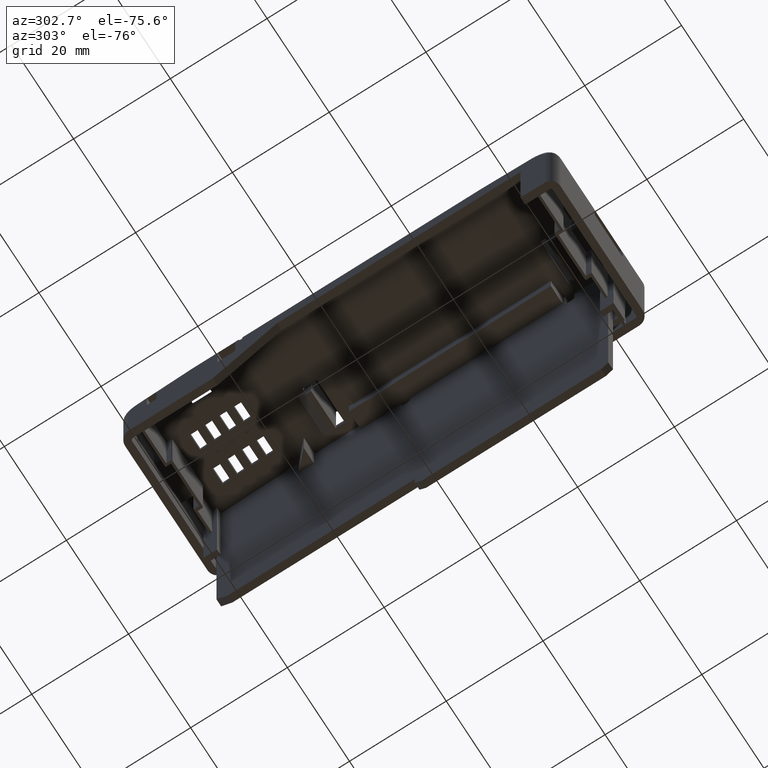
[diagram: clean part render]
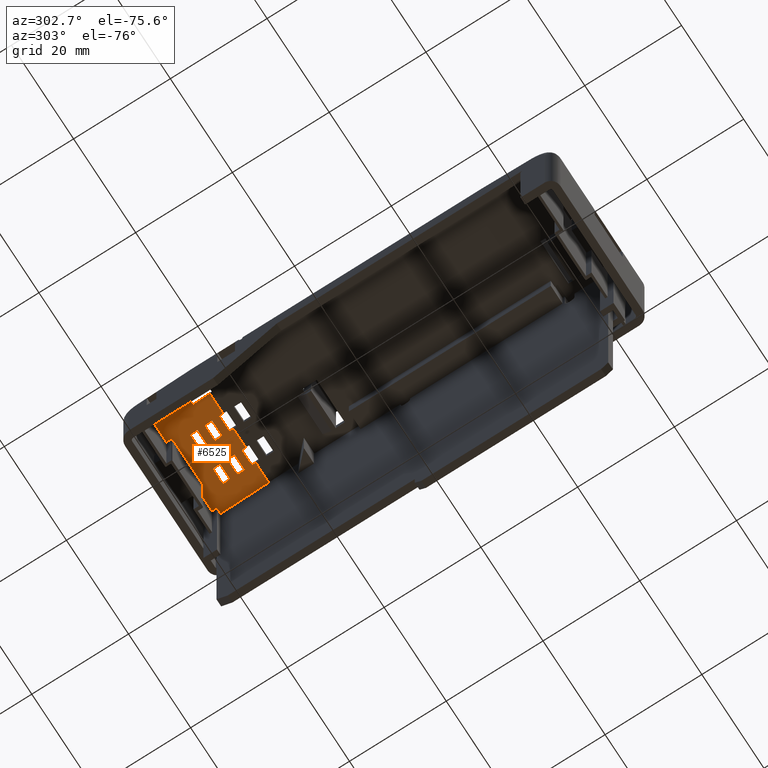
[diagram: same view with one face highlighted and labeled with its STEP entity id]
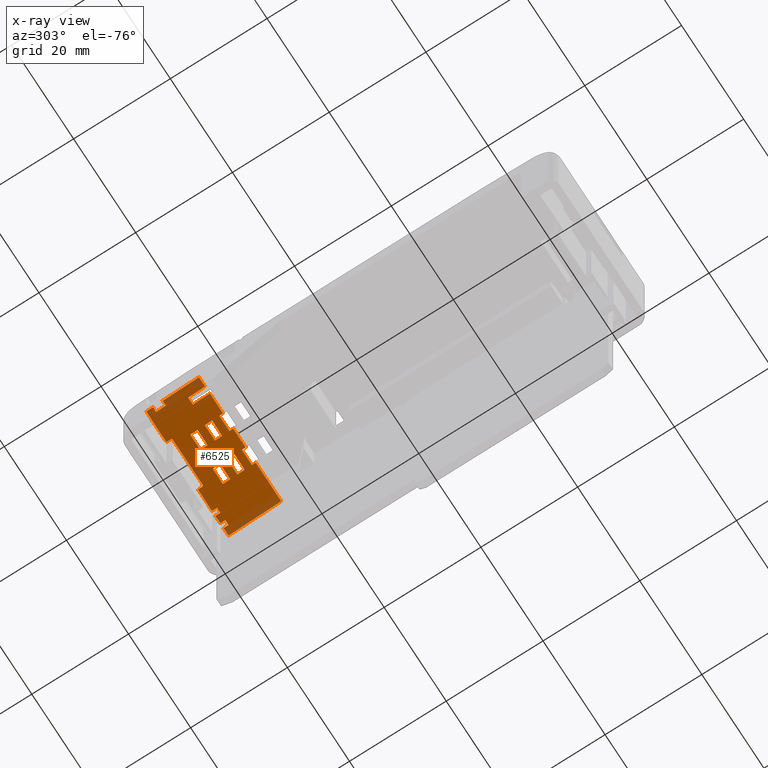
[diagram: x-ray of the same camera — body ghosted, the highlighted face saturated]
A machine part, auxiliary view. The second image highlights one B-rep face of the part: STEP entity #6525.
The next image is the same camera in x-ray: the body ghosted, the highlighted face saturated — about 15% of this face is hidden behind the body in this view.
In plain terms, the highlighted planar face has unit normal (0, 0.0996, 0.995).
Its self-contained STEP definition (entity closure, byte-faithful):
#3678 = DIRECTION ( 'NONE',  ( 0.0000000000000000000, -0.9950302254939813500, 0.09957334157994532400 ) ) ;
#3679 = VECTOR ( 'NONE', #3678, 1000.000000000000100 ) ;
#3680 = CARTESIAN_POINT ( 'NONE',  ( 2.499999999999998700, 34.12035754261964400, 3.621180203398221700 ) ) ;
#3681 = LINE ( 'NONE', #3680, #3679 ) ;
#5353 = CARTESIAN_POINT ( 'NONE',  ( 4.500000000000000900, 37.72447470938786300, 3.260513782875572800 ) ) ;
#5499 = DIRECTION ( 'NONE',  ( -2.157627864338630100E-016, -0.9950302254939813500, 0.09957334157994532400 ) ) ;
#5500 = VECTOR ( 'NONE', #5499, 1000.000000000000100 ) ;
#5501 = CARTESIAN_POINT ( 'NONE',  ( 4.500000000000000900, 34.12035754261965100, 3.621180203398221200 ) ) ;
#5502 = LINE ( 'NONE', #5501, #5500 ) ;
#5611 = CARTESIAN_POINT ( 'NONE',  ( 24.78303960287886600, 44.08935936110140800, 2.623575509741822700 ) ) ;
#5675 = CARTESIAN_POINT ( 'NONE',  ( 24.78303960287886600, 45.11893091413327300, 2.520545594363984100 ) ) ;
#5676 = DIRECTION ( 'NONE',  ( 0.0000000000000000000, -0.9950302254939813500, 0.09957334157994532400 ) ) ;
#5677 = VECTOR ( 'NONE', #5676, 1000.000000000000100 ) ;
#5678 = CARTESIAN_POINT ( 'NONE',  ( 24.78303960287886600, 34.12035754261964400, 3.621180203398221700 ) ) ;
#5679 = LINE ( 'NONE', #5678, #5677 ) ;
#5913 = EDGE_CURVE ( 'NONE', #6032, #6031, #13449, .T. ) ;
#5934 = VERTEX_POINT ( 'NONE', #13533 ) ;
#5982 = EDGE_CURVE ( 'NONE', #9622, #18089, #13593, .T. ) ;
#6014 = VERTEX_POINT ( 'NONE', #13694 ) ;
#6016 = EDGE_CURVE ( 'NONE', #5934, #6014, #13693, .T. ) ;
#6019 = VERTEX_POINT ( 'NONE', #13752 ) ;
#6021 = EDGE_CURVE ( 'NONE', #6022, #6019, #13751, .T. ) ;
#6022 = VERTEX_POINT ( 'NONE', #13747 ) ;
#6031 = VERTEX_POINT ( 'NONE', #13732 ) ;
#6032 = VERTEX_POINT ( 'NONE', #13731 ) ;
#6037 = VERTEX_POINT ( 'NONE', #13787 ) ;
#6039 = EDGE_CURVE ( 'NONE', #6040, #6037, #13786, .T. ) ;
#6040 = VERTEX_POINT ( 'NONE', #13782 ) ;
#6097 = EDGE_CURVE ( 'NONE', #6019, #9622, #13881, .T. ) ;
#6449 = ORIENTED_EDGE ( 'NONE', *, *, #6450, .T. ) ;
#6450 = EDGE_CURVE ( 'NONE', #6533, #6451, #14780, .T. ) ;
#6451 = VERTEX_POINT ( 'NONE', #14776 ) ;
#6491 = EDGE_CURVE ( 'NONE', #6492, #6493, #14894, .T. ) ;
#6492 = VERTEX_POINT ( 'NONE', #14890 ) ;
#6493 = VERTEX_POINT ( 'NONE', #14889 ) ;
#6494 = EDGE_CURVE ( 'NONE', #6521, #6514, #14888, .T. ) ;
#6495 = EDGE_LOOP ( 'NONE', ( #6496, #6500, #6503, #6506 ) ) ;
#6496 = ORIENTED_EDGE ( 'NONE', *, *, #6497, .T. ) ;
#6497 = EDGE_CURVE ( 'NONE', #6498, #6499, #14883, .T. ) ;
#6498 = VERTEX_POINT ( 'NONE', #14936 ) ;
#6499 = VERTEX_POINT ( 'NONE', #14935 ) ;
#6500 = ORIENTED_EDGE ( 'NONE', *, *, #6501, .T. ) ;
#6501 = EDGE_CURVE ( 'NONE', #6499, #6502, #14934, .T. ) ;
#6502 = VERTEX_POINT ( 'NONE', #14930 ) ;
#6503 = ORIENTED_EDGE ( 'NONE', *, *, #6504, .T. ) ;
#6504 = EDGE_CURVE ( 'NONE', #6502, #6505, #14929, .T. ) ;
#6505 = VERTEX_POINT ( 'NONE', #14925 ) ;
#6506 = ORIENTED_EDGE ( 'NONE', *, *, #6507, .T. ) ;
#6507 = EDGE_CURVE ( 'NONE', #6505, #6498, #14924, .T. ) ;
#6508 = EDGE_LOOP ( 'NONE', ( #6567, #6571, #6574, #6577 ) ) ;
#6509 = ORIENTED_EDGE ( 'NONE', *, *, #6510, .T. ) ;
#6510 = EDGE_CURVE ( 'NONE', #6451, #6529, #14920, .T. ) ;
#6511 = EDGE_LOOP ( 'NONE', ( #6512, #6516, #6519, #6522 ) ) ;
#6512 = ORIENTED_EDGE ( 'NONE', *, *, #6513, .T. ) ;
#6513 = EDGE_CURVE ( 'NONE', #6514, #6515, #14916, .T. ) ;
#6514 = VERTEX_POINT ( 'NONE', #14912 ) ;
#6515 = VERTEX_POINT ( 'NONE', #14911 ) ;
#6516 = ORIENTED_EDGE ( 'NONE', *, *, #6517, .T. ) ;
#6517 = EDGE_CURVE ( 'NONE', #6515, #6518, #14910, .T. ) ;
#6518 = VERTEX_POINT ( 'NONE', #14967 ) ;
#6519 = ORIENTED_EDGE ( 'NONE', *, *, #6520, .T. ) ;
#6520 = EDGE_CURVE ( 'NONE', #6518, #6521, #14966, .T. ) ;
#6521 = VERTEX_POINT ( 'NONE', #14962 ) ;
#6522 = ORIENTED_EDGE ( 'NONE', *, *, #6494, .T. ) ;
#6525 = ADVANCED_FACE ( 'NONE', ( #14956, #14955, #14954, #14953, #14952 ), #14937, .F. ) ;
#6526 = EDGE_LOOP ( 'NONE', ( #6527, #6531, #6449, #6509 ) ) ;
#6527 = ORIENTED_EDGE ( 'NONE', *, *, #6528, .T. ) ;
#6528 = EDGE_CURVE ( 'NONE', #6529, #6530, #14997, .T. ) ;
#6529 = VERTEX_POINT ( 'NONE', #14989 ) ;
#6530 = VERTEX_POINT ( 'NONE', #14988 ) ;
#6531 = ORIENTED_EDGE ( 'NONE', *, *, #6532, .T. ) ;
#6532 = EDGE_CURVE ( 'NONE', #6530, #6533, #14987, .T. ) ;
#6533 = VERTEX_POINT ( 'NONE', #14983 ) ;
#6534 = EDGE_CURVE ( 'NONE', #6535, #6625, #14982, .T. ) ;
#6535 = VERTEX_POINT ( 'NONE', #14978 ) ;
#6536 = ORIENTED_EDGE ( 'NONE', *, *, #6537, .F. ) ;
#6537 = EDGE_CURVE ( 'NONE', #6538, #6535, #14977, .T. ) ;
#6538 = VERTEX_POINT ( 'NONE', #14973 ) ;
#6539 = ORIENTED_EDGE ( 'NONE', *, *, #6606, .F. ) ;
#6540 = ORIENTED_EDGE ( 'NONE', *, *, #6541, .F. ) ;
#6541 = EDGE_CURVE ( 'NONE', #6542, #6566, #14972, .T. ) ;
#6542 = VERTEX_POINT ( 'NONE', #14968 ) ;
#6543 = ORIENTED_EDGE ( 'NONE', *, *, #6544, .F. ) ;
#6544 = EDGE_CURVE ( 'NONE', #6545, #6542, #15016, .T. ) ;
#6545 = VERTEX_POINT ( 'NONE', #15018 ) ;
#6546 = ORIENTED_EDGE ( 'NONE', *, *, #6547, .F. ) ;
#6547 = EDGE_CURVE ( 'NONE', #6548, #6545, #15017, .T. ) ;
#6548 = VERTEX_POINT ( 'NONE', #15008 ) ;
#6549 = ORIENTED_EDGE ( 'NONE', *, *, #6550, .F. ) ;
#6550 = EDGE_CURVE ( 'NONE', #6551, #6548, #15007, .T. ) ;
#6551 = VERTEX_POINT ( 'NONE', #15003 ) ;
#6552 = ORIENTED_EDGE ( 'NONE', *, *, #6553, .F. ) ;
#6553 = EDGE_CURVE ( 'NONE', #6554, #6551, #15002, .T. ) ;
#6554 = VERTEX_POINT ( 'NONE', #14998 ) ;
#6555 = ORIENTED_EDGE ( 'NONE', *, *, #6556, .T. ) ;
#6556 = EDGE_CURVE ( 'NONE', #6492, #10694, #15044, .T. ) ;
#6557 = ORIENTED_EDGE ( 'NONE', *, *, #12763, .F. ) ;
#6558 = ORIENTED_EDGE ( 'NONE', *, *, #6559, .F. ) ;
#6559 = EDGE_CURVE ( 'NONE', #6560, #10977, #15040, .T. ) ;
#6560 = VERTEX_POINT ( 'NONE', #15036 ) ;
#6561 = ORIENTED_EDGE ( 'NONE', *, *, #6562, .F. ) ;
#6562 = EDGE_CURVE ( 'NONE', #6563, #6560, #15035, .T. ) ;
#6563 = VERTEX_POINT ( 'NONE', #15031 ) ;
#6564 = ORIENTED_EDGE ( 'NONE', *, *, #6565, .F. ) ;
#6565 = EDGE_CURVE ( 'NONE', #6566, #6563, #15028, .T. ) ;
#6566 = VERTEX_POINT ( 'NONE', #15030 ) ;
#6567 = ORIENTED_EDGE ( 'NONE', *, *, #6568, .T. ) ;
#6568 = EDGE_CURVE ( 'NONE', #6569, #6570, #15029, .T. ) ;
#6569 = VERTEX_POINT ( 'NONE', #15020 ) ;
#6570 = VERTEX_POINT ( 'NONE', #15019 ) ;
#6571 = ORIENTED_EDGE ( 'NONE', *, *, #6572, .T. ) ;
#6572 = EDGE_CURVE ( 'NONE', #6570, #6573, #15079, .T. ) ;
#6573 = VERTEX_POINT ( 'NONE', #15075 ) ;
#6574 = ORIENTED_EDGE ( 'NONE', *, *, #6575, .T. ) ;
#6575 = EDGE_CURVE ( 'NONE', #6573, #6576, #15074, .T. ) ;
#6576 = VERTEX_POINT ( 'NONE', #15070 ) ;
#6577 = ORIENTED_EDGE ( 'NONE', *, *, #6578, .T. ) ;
#6578 = EDGE_CURVE ( 'NONE', #6576, #6569, #15069, .T. ) ;
#6579 = EDGE_LOOP ( 'NONE', ( #6580, #6555, #6557, #6558, #6561, #6564, #6540, #6543, #6546, #6549, #6552, #6620, #6622, #6623, #6626, #6536, #6539, #6608, #6611, #6613, #6614, #6617, #6594, #6596, #6597, #6600, #6603, #6605, #6670, #6581, #6582, #6583, #6584, #6587 ) ) ;
#6580 = ORIENTED_EDGE ( 'NONE', *, *, #6491, .F. ) ;
#6581 = ORIENTED_EDGE ( 'NONE', *, *, #5982, .T. ) ;
#6582 = ORIENTED_EDGE ( 'NONE', *, *, #25355, .T. ) ;
#6583 = ORIENTED_EDGE ( 'NONE', *, *, #6039, .T. ) ;
#6584 = ORIENTED_EDGE ( 'NONE', *, *, #6585, .F. ) ;
#6585 = EDGE_CURVE ( 'NONE', #6586, #6037, #15065, .T. ) ;
#6586 = VERTEX_POINT ( 'NONE', #15061 ) ;
#6587 = ORIENTED_EDGE ( 'NONE', *, *, #6588, .T. ) ;
#6588 = EDGE_CURVE ( 'NONE', #6586, #6493, #15059, .T. ) ;
#6594 = ORIENTED_EDGE ( 'NONE', *, *, #6595, .T. ) ;
#6595 = EDGE_CURVE ( 'NONE', #6619, #6032, #15087, .T. ) ;
#6596 = ORIENTED_EDGE ( 'NONE', *, *, #5913, .T. ) ;
#6597 = ORIENTED_EDGE ( 'NONE', *, *, #6598, .T. ) ;
#6598 = EDGE_CURVE ( 'NONE', #6031, #6599, #15083, .T. ) ;
#6599 = VERTEX_POINT ( 'NONE', #15131 ) ;
#6600 = ORIENTED_EDGE ( 'NONE', *, *, #6601, .T. ) ;
#6601 = EDGE_CURVE ( 'NONE', #6599, #6602, #15130, .T. ) ;
#6602 = VERTEX_POINT ( 'NONE', #15126 ) ;
#6603 = ORIENTED_EDGE ( 'NONE', *, *, #6604, .T. ) ;
#6604 = EDGE_CURVE ( 'NONE', #6602, #6022, #15125, .T. ) ;
#6605 = ORIENTED_EDGE ( 'NONE', *, *, #6021, .T. ) ;
#6606 = EDGE_CURVE ( 'NONE', #6607, #6538, #15121, .T. ) ;
#6607 = VERTEX_POINT ( 'NONE', #15117 ) ;
#6608 = ORIENTED_EDGE ( 'NONE', *, *, #6609, .F. ) ;
#6609 = EDGE_CURVE ( 'NONE', #6610, #6607, #15116, .T. ) ;
#6610 = VERTEX_POINT ( 'NONE', #15112 ) ;
#6611 = ORIENTED_EDGE ( 'NONE', *, *, #6612, .F. ) ;
#6612 = EDGE_CURVE ( 'NONE', #5934, #6610, #15111, .T. ) ;
#6613 = ORIENTED_EDGE ( 'NONE', *, *, #6016, .T. ) ;
#6614 = ORIENTED_EDGE ( 'NONE', *, *, #6615, .T. ) ;
#6615 = EDGE_CURVE ( 'NONE', #6014, #6616, #15107, .T. ) ;
#6616 = VERTEX_POINT ( 'NONE', #15103 ) ;
#6617 = ORIENTED_EDGE ( 'NONE', *, *, #6618, .T. ) ;
#6618 = EDGE_CURVE ( 'NONE', #6616, #6619, #14642, .T. ) ;
#6619 = VERTEX_POINT ( 'NONE', #15165 ) ;
#6620 = ORIENTED_EDGE ( 'NONE', *, *, #6621, .F. ) ;
#6621 = EDGE_CURVE ( 'NONE', #29633, #6554, #15164, .T. ) ;
#6622 = ORIENTED_EDGE ( 'NONE', *, *, #30269, .F. ) ;
#6623 = ORIENTED_EDGE ( 'NONE', *, *, #6624, .F. ) ;
#6624 = EDGE_CURVE ( 'NONE', #6625, #30274, #15160, .T. ) ;
#6625 = VERTEX_POINT ( 'NONE', #15156 ) ;
#6626 = ORIENTED_EDGE ( 'NONE', *, *, #6534, .F. ) ;
#6670 = ORIENTED_EDGE ( 'NONE', *, *, #6097, .T. ) ;
#9622 = VERTEX_POINT ( 'NONE', #24072 ) ;
#10694 = VERTEX_POINT ( 'NONE', #27309 ) ;
#10977 = VERTEX_POINT ( 'NONE', #28199 ) ;
#12763 = EDGE_CURVE ( 'NONE', #10977, #10694, #3681, .T. ) ;
#13446 = DIRECTION ( 'NONE',  ( -1.000000000000000000, 0.0000000000000000000, 0.0000000000000000000 ) ) ;
#13447 = VECTOR ( 'NONE', #13446, 1000.000000000000000 ) ;
#13448 = CARTESIAN_POINT ( 'NONE',  ( 31.00000000000000000, 34.19485151513648400, 3.613725541639194000 ) ) ;
#13449 = LINE ( 'NONE', #13448, #13447 ) ;
#13533 = CARTESIAN_POINT ( 'NONE',  ( 28.99999999999999600, 34.19485151513648400, 3.613725541639194000 ) ) ;
#13590 = DIRECTION ( 'NONE',  ( -1.000000000000000000, 0.0000000000000000000, 0.0000000000000000000 ) ) ;
#13591 = VECTOR ( 'NONE', #13590, 1000.000000000000000 ) ;
#13592 = CARTESIAN_POINT ( 'NONE',  ( 31.00000000000000000, 37.72447470938786300, 3.260513782875574100 ) ) ;
#13593 = LINE ( 'NONE', #13592, #13591 ) ;
#13690 = DIRECTION ( 'NONE',  ( -1.000000000000000000, 0.0000000000000000000, 0.0000000000000000000 ) ) ;
#13691 = VECTOR ( 'NONE', #13690, 1000.000000000000000 ) ;
#13692 = CARTESIAN_POINT ( 'NONE',  ( 31.00000000000000000, 34.19485151513648400, 3.613725541639194000 ) ) ;
#13693 = LINE ( 'NONE', #13692, #13691 ) ;
#13694 = CARTESIAN_POINT ( 'NONE',  ( 20.74999999999998900, 34.19485151513648400, 3.613725541639194000 ) ) ;
#13731 = CARTESIAN_POINT ( 'NONE',  ( 17.49999999999999300, 34.19485151513648400, 3.613725541639194000 ) ) ;
#13732 = CARTESIAN_POINT ( 'NONE',  ( 13.49999999999999100, 34.19485151513648400, 3.613725541639194000 ) ) ;
#13747 = CARTESIAN_POINT ( 'NONE',  ( 10.24999999999999100, 34.19485151513648400, 3.613725541639194000 ) ) ;
#13748 = DIRECTION ( 'NONE',  ( -1.000000000000000000, 0.0000000000000000000, 0.0000000000000000000 ) ) ;
#13749 = VECTOR ( 'NONE', #13748, 1000.000000000000000 ) ;
#13750 = CARTESIAN_POINT ( 'NONE',  ( 31.00000000000000000, 34.19485151513648400, 3.613725541639194000 ) ) ;
#13751 = LINE ( 'NONE', #13750, #13749 ) ;
#13752 = CARTESIAN_POINT ( 'NONE',  ( 5.999999999999998200, 34.19485151513648400, 3.613725541639194000 ) ) ;
#13782 = CARTESIAN_POINT ( 'NONE',  ( 4.500000000000000900, 34.19485151513648400, 3.613725541639194000 ) ) ;
#13783 = DIRECTION ( 'NONE',  ( -1.000000000000000000, 0.0000000000000000000, 0.0000000000000000000 ) ) ;
#13784 = VECTOR ( 'NONE', #13783, 1000.000000000000000 ) ;
#13785 = CARTESIAN_POINT ( 'NONE',  ( 31.00000000000000000, 34.19485151513648400, 3.613725541639194000 ) ) ;
#13786 = LINE ( 'NONE', #13785, #13784 ) ;
#13787 = CARTESIAN_POINT ( 'NONE',  ( 2.500000000000002200, 34.19485151513633500, 3.613725541639194000 ) ) ;
#13878 = DIRECTION ( 'NONE',  ( 0.0000000000000000000, 0.9950302254939813500, -0.09957334157994532400 ) ) ;
#13879 = VECTOR ( 'NONE', #13878, 1000.000000000000100 ) ;
#13880 = CARTESIAN_POINT ( 'NONE',  ( 5.999999999999998200, 34.12035754261964400, 3.621180203398221700 ) ) ;
#13881 = LINE ( 'NONE', #13880, #13879 ) ;
#14641 = CARTESIAN_POINT ( 'NONE',  ( 31.00000000000000000, 34.97447470938786300, 3.535708126051338800 ) ) ;
#14642 = LINE ( 'NONE', #14641, #14884 ) ;
#14776 = CARTESIAN_POINT ( 'NONE',  ( 10.24999999999997200, 39.47447470938781300, 3.085390109945548100 ) ) ;
#14777 = DIRECTION ( 'NONE',  ( 0.0000000000000000000, -0.9950302254939813500, 0.09957334157994532400 ) ) ;
#14778 = VECTOR ( 'NONE', #14777, 1000.000000000000100 ) ;
#14779 = CARTESIAN_POINT ( 'NONE',  ( 10.24999999999997200, 34.12035754261964400, 3.621180203398221700 ) ) ;
#14780 = LINE ( 'NONE', #14779, #14778 ) ;
#14879 = DIRECTION ( 'NONE',  ( -1.000000000000000000, -0.0000000000000000000, 0.0000000000000000000 ) ) ;
#14880 = DIRECTION ( 'NONE',  ( 0.0000000000000000000, 0.9950302254939813500, -0.09957334157994532400 ) ) ;
#14881 = VECTOR ( 'NONE', #14880, 1000.000000000000100 ) ;
#14882 = CARTESIAN_POINT ( 'NONE',  ( 20.74999999999997200, 34.12035754261964400, 3.621180203398221700 ) ) ;
#14883 = LINE ( 'NONE', #14882, #14881 ) ;
#14884 = VECTOR ( 'NONE', #14879, 1000.000000000000000 ) ;
#14885 = DIRECTION ( 'NONE',  ( 1.000000000000000000, 2.135044278125301300E-015, -2.136553119163156100E-016 ) ) ;
#14886 = VECTOR ( 'NONE', #14885, 1000.000000000000000 ) ;
#14887 = CARTESIAN_POINT ( 'NONE',  ( 30.99999999999999600, 36.47447470938785600, 3.385602120682740700 ) ) ;
#14888 = LINE ( 'NONE', #14887, #14886 ) ;
#14889 = CARTESIAN_POINT ( 'NONE',  ( 3.499999999999999600, 41.72293079737083600, 2.860385602202987900 ) ) ;
#14890 = CARTESIAN_POINT ( 'NONE',  ( 3.499999999999999600, 43.72293079737083600, 2.660244261711521400 ) ) ;
#14891 = DIRECTION ( 'NONE',  ( 0.0000000000000000000, -0.9950302254939813500, 0.09957334157994532400 ) ) ;
#14892 = VECTOR ( 'NONE', #14891, 1000.000000000000100 ) ;
#14893 = CARTESIAN_POINT ( 'NONE',  ( 3.499999999999999600, 34.12035754261964400, 3.621180203398221700 ) ) ;
#14894 = LINE ( 'NONE', #14893, #14892 ) ;
#14907 = DIRECTION ( 'NONE',  ( -1.000000000000000000, -0.0000000000000000000, 0.0000000000000000000 ) ) ;
#14908 = VECTOR ( 'NONE', #14907, 1000.000000000000000 ) ;
#14909 = CARTESIAN_POINT ( 'NONE',  ( 31.00000000000000000, 37.97447470938781300, 3.235496115314146200 ) ) ;
#14910 = LINE ( 'NONE', #14909, #14908 ) ;
#14911 = CARTESIAN_POINT ( 'NONE',  ( 13.49999999999998000, 37.97447470938781300, 3.235496115314147000 ) ) ;
#14912 = CARTESIAN_POINT ( 'NONE',  ( 13.49999999999998000, 36.47447470938782000, 3.385602120682742900 ) ) ;
#14913 = DIRECTION ( 'NONE',  ( 0.0000000000000000000, 0.9950302254939813500, -0.09957334157994532400 ) ) ;
#14914 = VECTOR ( 'NONE', #14913, 1000.000000000000100 ) ;
#14915 = CARTESIAN_POINT ( 'NONE',  ( 13.49999999999998000, 34.12035754261964400, 3.621180203398221700 ) ) ;
#14916 = LINE ( 'NONE', #14915, #14914 ) ;
#14917 = DIRECTION ( 'NONE',  ( 1.000000000000000000, 0.0000000000000000000, -0.0000000000000000000 ) ) ;
#14918 = VECTOR ( 'NONE', #14917, 1000.000000000000000 ) ;
#14919 = CARTESIAN_POINT ( 'NONE',  ( 31.00000000000000000, 39.47447470938781300, 3.085390109945546700 ) ) ;
#14920 = LINE ( 'NONE', #14919, #14918 ) ;
#14921 = DIRECTION ( 'NONE',  ( 1.000000000000000000, 0.0000000000000000000, -0.0000000000000000000 ) ) ;
#14922 = VECTOR ( 'NONE', #14921, 1000.000000000000000 ) ;
#14923 = CARTESIAN_POINT ( 'NONE',  ( 31.00000000000000000, 39.47447470938786300, 3.085390109945541900 ) ) ;
#14924 = LINE ( 'NONE', #14923, #14922 ) ;
#14925 = CARTESIAN_POINT ( 'NONE',  ( 17.49999999999997200, 39.47447470938786300, 3.085390109945542300 ) ) ;
#14926 = DIRECTION ( 'NONE',  ( 0.0000000000000000000, -0.9950302254939813500, 0.09957334157994532400 ) ) ;
#14927 = VECTOR ( 'NONE', #14926, 1000.000000000000100 ) ;
#14928 = CARTESIAN_POINT ( 'NONE',  ( 17.49999999999997200, 34.12035754261964400, 3.621180203398221700 ) ) ;
#14929 = LINE ( 'NONE', #14928, #14927 ) ;
#14930 = CARTESIAN_POINT ( 'NONE',  ( 17.49999999999997200, 40.97447470938786300, 2.935284104576943300 ) ) ;
#14931 = DIRECTION ( 'NONE',  ( -1.000000000000000000, -0.0000000000000000000, 0.0000000000000000000 ) ) ;
#14932 = VECTOR ( 'NONE', #14931, 1000.000000000000000 ) ;
#14933 = CARTESIAN_POINT ( 'NONE',  ( 31.00000000000000000, 40.97447470938786300, 2.935284104576942400 ) ) ;
#14934 = LINE ( 'NONE', #14933, #14932 ) ;
#14935 = CARTESIAN_POINT ( 'NONE',  ( 20.74999999999997200, 40.97447470938786300, 2.935284104576943300 ) ) ;
#14936 = CARTESIAN_POINT ( 'NONE',  ( 20.74999999999997200, 39.47447470938786300, 3.085390109945542700 ) ) ;
#14937 = PLANE ( 'NONE',  #14996 ) ;
#14952 = FACE_OUTER_BOUND ( 'NONE', #6579, .T. ) ;
#14953 = FACE_BOUND ( 'NONE', #6508, .T. ) ;
#14954 = FACE_BOUND ( 'NONE', #6495, .T. ) ;
#14955 = FACE_BOUND ( 'NONE', #6511, .T. ) ;
#14956 = FACE_BOUND ( 'NONE', #6526, .T. ) ;
#14962 = CARTESIAN_POINT ( 'NONE',  ( 10.24999999999998200, 36.47447470938781300, 3.385602120682745600 ) ) ;
#14963 = DIRECTION ( 'NONE',  ( 0.0000000000000000000, -0.9950302254939813500, 0.09957334157994532400 ) ) ;
#14964 = VECTOR ( 'NONE', #14963, 1000.000000000000100 ) ;
#14965 = CARTESIAN_POINT ( 'NONE',  ( 10.24999999999998200, 34.12035754261964400, 3.621180203398221700 ) ) ;
#14966 = LINE ( 'NONE', #14965, #14964 ) ;
#14967 = CARTESIAN_POINT ( 'NONE',  ( 10.24999999999998200, 37.97447470938781300, 3.235496115314147000 ) ) ;
#14968 = CARTESIAN_POINT ( 'NONE',  ( 18.88684925036589100, 43.95988752496919700, 2.636531843161518600 ) ) ;
#14969 = DIRECTION ( 'NONE',  ( -1.000000000000000000, 7.215660238791853800E-016, -7.220759563613849000E-017 ) ) ;
#14970 = VECTOR ( 'NONE', #14969, 1000.000000000000000 ) ;
#14971 = CARTESIAN_POINT ( 'NONE',  ( 31.00000000000000700, 43.95988752496919000, 2.636531843161519500 ) ) ;
#14972 = LINE ( 'NONE', #14971, #14970 ) ;
#14973 = CARTESIAN_POINT ( 'NONE',  ( 27.39837026354286600, 44.08935936110140800, 2.623575509741823600 ) ) ;
#14974 = DIRECTION ( 'NONE',  ( -1.000000000000000000, -0.0000000000000000000, 0.0000000000000000000 ) ) ;
#14975 = VECTOR ( 'NONE', #14974, 1000.000000000000000 ) ;
#14976 = CARTESIAN_POINT ( 'NONE',  ( 31.00000000000000000, 44.08935936110140800, 2.623575509741822700 ) ) ;
#14977 = LINE ( 'NONE', #14976, #14975 ) ;
#14978 = CARTESIAN_POINT ( 'NONE',  ( 26.37775342035691400, 44.08935936110140800, 2.623575509741822700 ) ) ;
#14979 = DIRECTION ( 'NONE',  ( 0.0000000000000000000, 0.9950302254939813500, -0.09957334157994532400 ) ) ;
#14980 = VECTOR ( 'NONE', #14979, 1000.000000000000100 ) ;
#14981 = CARTESIAN_POINT ( 'NONE',  ( 26.37775342035691400, 34.12035754261964400, 3.621180203398221700 ) ) ;
#14982 = LINE ( 'NONE', #14981, #14980 ) ;
#14983 = CARTESIAN_POINT ( 'NONE',  ( 10.24999999999997200, 40.97447470938781300, 2.935284104576949500 ) ) ;
#14984 = DIRECTION ( 'NONE',  ( -1.000000000000000000, -0.0000000000000000000, 0.0000000000000000000 ) ) ;
#14985 = VECTOR ( 'NONE', #14984, 1000.000000000000000 ) ;
#14986 = CARTESIAN_POINT ( 'NONE',  ( 31.00000000000000000, 40.97447470938781300, 2.935284104576947800 ) ) ;
#14987 = LINE ( 'NONE', #14986, #14985 ) ;
#14988 = CARTESIAN_POINT ( 'NONE',  ( 13.49999999999997000, 40.97447470938781300, 2.935284104576949500 ) ) ;
#14989 = CARTESIAN_POINT ( 'NONE',  ( 13.49999999999997000, 39.47447470938781300, 3.085390109945546300 ) ) ;
#14990 = DIRECTION ( 'NONE',  ( 0.0000000000000000000, 0.9950302254939813500, -0.09957334157994532400 ) ) ;
#14991 = VECTOR ( 'NONE', #14990, 1000.000000000000100 ) ;
#14992 = CARTESIAN_POINT ( 'NONE',  ( 13.49999999999997000, 34.12035754261964400, 3.621180203398221700 ) ) ;
#14993 = DIRECTION ( 'NONE',  ( 0.0000000000000000000, -0.9950302254939813500, 0.09957334157994532400 ) ) ;
#14994 = DIRECTION ( 'NONE',  ( 0.0000000000000000000, 0.09957334157994533800, 0.9950302254939814600 ) ) ;
#14995 = CARTESIAN_POINT ( 'NONE',  ( 31.00000000000000000, 34.12035754261964400, 3.621180203398221700 ) ) ;
#14996 = AXIS2_PLACEMENT_3D ( 'NONE', #14995, #14994, #14993 ) ;
#14997 = LINE ( 'NONE', #14992, #14991 ) ;
#14998 = CARTESIAN_POINT ( 'NONE',  ( 23.69863420699379500, 44.08935936110140800, 2.623575509741823600 ) ) ;
#14999 = DIRECTION ( 'NONE',  ( 0.0000000000000000000, 0.9950302254939813500, -0.09957334157994532400 ) ) ;
#15000 = VECTOR ( 'NONE', #14999, 1000.000000000000100 ) ;
#15001 = CARTESIAN_POINT ( 'NONE',  ( 23.69863420699379500, 34.12035754261964400, 3.621180203398221700 ) ) ;
#15002 = LINE ( 'NONE', #15001, #15000 ) ;
#15003 = CARTESIAN_POINT ( 'NONE',  ( 23.69863420699379500, 45.11893091413327300, 2.520545594363984100 ) ) ;
#15004 = DIRECTION ( 'NONE',  ( -1.000000000000000000, -0.0000000000000000000, 0.0000000000000000000 ) ) ;
#15005 = VECTOR ( 'NONE', #15004, 1000.000000000000000 ) ;
#15006 = CARTESIAN_POINT ( 'NONE',  ( 31.00000000000000000, 45.11893091413327300, 2.520545594363984100 ) ) ;
#15007 = LINE ( 'NONE', #15006, #15005 ) ;
#15008 = CARTESIAN_POINT ( 'NONE',  ( 19.13684925036589100, 45.11893091413327300, 2.520545594363982300 ) ) ;
#15009 = DIRECTION ( 'NONE',  ( 0.0000000000000000000, -0.9950302254939813500, 0.09957334157994532400 ) ) ;
#15010 = VECTOR ( 'NONE', #15009, 1000.000000000000100 ) ;
#15011 = CARTESIAN_POINT ( 'NONE',  ( 19.13684925036589100, 34.12035754261964400, 3.621180203398221700 ) ) ;
#15012 = CARTESIAN_POINT ( 'NONE',  ( 18.88684925036589100, 43.95988752496919700, 2.636531843161518600 ) ) ;
#15013 = CARTESIAN_POINT ( 'NONE',  ( 19.03329585977261800, 43.95988752496919000, 2.636531843161525700 ) ) ;
#15014 = CARTESIAN_POINT ( 'NONE',  ( 19.13684925036589100, 44.06344091556246700, 2.626169185958638200 ) ) ;
#15015 = CARTESIAN_POINT ( 'NONE',  ( 19.13684925036589100, 44.20988752496919700, 2.611514175600092400 ) ) ;
#15016 =( BOUNDED_CURVE ( )  B_SPLINE_CURVE ( 3, ( #15015, #15014, #15013, #15012 ),
 .UNSPECIFIED., .F., .T. ) 
 B_SPLINE_CURVE_WITH_KNOTS ( ( 4, 4 ),
 ( 4.712388980384689700, 6.283185307179586200 ),
 .UNSPECIFIED. ) 
 CURVE ( )  GEOMETRIC_REPRESENTATION_ITEM ( )  RATIONAL_B_SPLINE_CURVE ( ( 1.000000000000000000, 0.8047378541243649400, 0.8047378541243649400, 1.000000000000000000 ) ) 
 REPRESENTATION_ITEM ( '' )  );
#15017 = LINE ( 'NONE', #15011, #15010 ) ;
#15018 = CARTESIAN_POINT ( 'NONE',  ( 19.13684925036589100, 44.20988752496919700, 2.611514175600092400 ) ) ;
#15019 = CARTESIAN_POINT ( 'NONE',  ( 20.74999999999997900, 37.97447470938786300, 3.235496115314141300 ) ) ;
#15020 = CARTESIAN_POINT ( 'NONE',  ( 20.74999999999997900, 36.47447470938787000, 3.385602120682739400 ) ) ;
#15021 = DIRECTION ( 'NONE',  ( 0.0000000000000000000, 0.9950302254939813500, -0.09957334157994532400 ) ) ;
#15022 = VECTOR ( 'NONE', #15021, 1000.000000000000100 ) ;
#15023 = CARTESIAN_POINT ( 'NONE',  ( 20.74999999999997900, 34.12035754261964400, 3.621180203398221700 ) ) ;
#15024 = CARTESIAN_POINT ( 'NONE',  ( 9.020412674536986600, 44.20988752496920400, 2.611514175600084800 ) ) ;
#15025 = CARTESIAN_POINT ( 'NONE',  ( 9.020412674536986600, 44.06344091556247400, 2.626169185958638700 ) ) ;
#15026 = CARTESIAN_POINT ( 'NONE',  ( 9.123966065130261400, 43.95988752496921800, 2.636531843161525200 ) ) ;
#15027 = CARTESIAN_POINT ( 'NONE',  ( 9.270412674536988400, 43.95988752496920400, 2.636531843161524300 ) ) ;
#15028 =( BOUNDED_CURVE ( )  B_SPLINE_CURVE ( 3, ( #15027, #15026, #15025, #15024 ),
 .UNSPECIFIED., .F., .T. ) 
 B_SPLINE_CURVE_WITH_KNOTS ( ( 4, 4 ),
 ( -7.105427357601001900E-015, 1.570796326794896600 ),
 .UNSPECIFIED. ) 
 CURVE ( )  GEOMETRIC_REPRESENTATION_ITEM ( )  RATIONAL_B_SPLINE_CURVE ( ( 1.000000000000000000, 0.8047378541243632700, 0.8047378541243632700, 1.000000000000000000 ) ) 
 REPRESENTATION_ITEM ( '' )  );
#15029 = LINE ( 'NONE', #15023, #15022 ) ;
#15030 = CARTESIAN_POINT ( 'NONE',  ( 9.270412674536988400, 43.95988752496920400, 2.636531843161524300 ) ) ;
#15031 = CARTESIAN_POINT ( 'NONE',  ( 9.020412674536986600, 44.20988752496920400, 2.611514175600084800 ) ) ;
#15032 = DIRECTION ( 'NONE',  ( 0.0000000000000000000, 0.9950302254939813500, -0.09957334157994532400 ) ) ;
#15033 = VECTOR ( 'NONE', #15032, 1000.000000000000100 ) ;
#15034 = CARTESIAN_POINT ( 'NONE',  ( 9.020412674536986600, 34.12035754261964400, 3.621180203398221700 ) ) ;
#15035 = LINE ( 'NONE', #15034, #15033 ) ;
#15036 = CARTESIAN_POINT ( 'NONE',  ( 9.020412674536986600, 45.11893091413327300, 2.520545594363984100 ) ) ;
#15037 = DIRECTION ( 'NONE',  ( -1.000000000000000000, -0.0000000000000000000, 0.0000000000000000000 ) ) ;
#15038 = VECTOR ( 'NONE', #15037, 1000.000000000000000 ) ;
#15039 = CARTESIAN_POINT ( 'NONE',  ( 31.00000000000000000, 45.11893091413327300, 2.520545594363984100 ) ) ;
#15040 = LINE ( 'NONE', #15039, #15038 ) ;
#15041 = DIRECTION ( 'NONE',  ( -1.000000000000000000, 0.0000000000000000000, 0.0000000000000000000 ) ) ;
#15042 = VECTOR ( 'NONE', #15041, 1000.000000000000000 ) ;
#15043 = CARTESIAN_POINT ( 'NONE',  ( 31.00000000000000000, 43.72293079737083600, 2.660244261711522300 ) ) ;
#15044 = LINE ( 'NONE', #15043, #15042 ) ;
#15056 = DIRECTION ( 'NONE',  ( 1.000000000000000000, 0.0000000000000000000, -0.0000000000000000000 ) ) ;
#15057 = VECTOR ( 'NONE', #15056, 1000.000000000000000 ) ;
#15058 = CARTESIAN_POINT ( 'NONE',  ( 31.00000000000000000, 41.72293079737083600, 2.860385602202987900 ) ) ;
#15059 = LINE ( 'NONE', #15058, #15057 ) ;
#15061 = CARTESIAN_POINT ( 'NONE',  ( 2.499999999999998700, 41.72293079737083600, 2.860385602202987900 ) ) ;
#15062 = DIRECTION ( 'NONE',  ( 0.0000000000000000000, -0.9950302254939813500, 0.09957334157994532400 ) ) ;
#15063 = VECTOR ( 'NONE', #15062, 1000.000000000000100 ) ;
#15064 = CARTESIAN_POINT ( 'NONE',  ( 2.499999999999998700, 34.12035754261964400, 3.621180203398221700 ) ) ;
#15065 = LINE ( 'NONE', #15064, #15063 ) ;
#15066 = DIRECTION ( 'NONE',  ( 1.000000000000000000, 2.135044278125301300E-015, -2.136553119163156100E-016 ) ) ;
#15067 = VECTOR ( 'NONE', #15066, 1000.000000000000000 ) ;
#15068 = CARTESIAN_POINT ( 'NONE',  ( 30.99999999999999600, 36.47447470938789100, 3.385602120682738000 ) ) ;
#15069 = LINE ( 'NONE', #15068, #15067 ) ;
#15070 = CARTESIAN_POINT ( 'NONE',  ( 17.49999999999998200, 36.47447470938786300, 3.385602120682740200 ) ) ;
#15071 = DIRECTION ( 'NONE',  ( 0.0000000000000000000, -0.9950302254939813500, 0.09957334157994532400 ) ) ;
#15072 = VECTOR ( 'NONE', #15071, 1000.000000000000100 ) ;
#15073 = CARTESIAN_POINT ( 'NONE',  ( 17.49999999999998200, 34.12035754261964400, 3.621180203398221700 ) ) ;
#15074 = LINE ( 'NONE', #15073, #15072 ) ;
#15075 = CARTESIAN_POINT ( 'NONE',  ( 17.49999999999998200, 37.97447470938786300, 3.235496115314141300 ) ) ;
#15076 = DIRECTION ( 'NONE',  ( -1.000000000000000000, -0.0000000000000000000, 0.0000000000000000000 ) ) ;
#15077 = VECTOR ( 'NONE', #15076, 1000.000000000000000 ) ;
#15078 = CARTESIAN_POINT ( 'NONE',  ( 31.00000000000000000, 37.97447470938786300, 3.235496115314141300 ) ) ;
#15079 = LINE ( 'NONE', #15078, #15077 ) ;
#15080 = DIRECTION ( 'NONE',  ( 0.0000000000000000000, 0.9950302254939813500, -0.09957334157994532400 ) ) ;
#15081 = VECTOR ( 'NONE', #15080, 1000.000000000000100 ) ;
#15082 = CARTESIAN_POINT ( 'NONE',  ( 13.49999999999999100, 34.12035754261964400, 3.621180203398221700 ) ) ;
#15083 = LINE ( 'NONE', #15082, #15081 ) ;
#15084 = DIRECTION ( 'NONE',  ( 0.0000000000000000000, -0.9950302254939813500, 0.09957334157994532400 ) ) ;
#15085 = VECTOR ( 'NONE', #15084, 1000.000000000000100 ) ;
#15086 = CARTESIAN_POINT ( 'NONE',  ( 17.49999999999999300, 34.12035754261964400, 3.621180203398221700 ) ) ;
#15087 = LINE ( 'NONE', #15086, #15085 ) ;
#15103 = CARTESIAN_POINT ( 'NONE',  ( 20.74999999999998900, 34.97447470938786300, 3.535708126051340500 ) ) ;
#15104 = DIRECTION ( 'NONE',  ( 0.0000000000000000000, 0.9950302254939813500, -0.09957334157994532400 ) ) ;
#15105 = VECTOR ( 'NONE', #15104, 1000.000000000000100 ) ;
#15106 = CARTESIAN_POINT ( 'NONE',  ( 20.74999999999998900, 34.12035754261964400, 3.621180203398221700 ) ) ;
#15107 = LINE ( 'NONE', #15106, #15105 ) ;
#15108 = DIRECTION ( 'NONE',  ( -0.0000000000000000000, 0.9950302254939813500, -0.09957334157994532400 ) ) ;
#15109 = VECTOR ( 'NONE', #15108, 1000.000000000000100 ) ;
#15110 = CARTESIAN_POINT ( 'NONE',  ( 28.99999999999999600, 34.12035754261964400, 3.621180203398221700 ) ) ;
#15111 = LINE ( 'NONE', #15110, #15109 ) ;
#15112 = CARTESIAN_POINT ( 'NONE',  ( 28.99999999999999600, 45.11893091413327300, 2.520545594363984100 ) ) ;
#15113 = DIRECTION ( 'NONE',  ( -1.000000000000000000, -0.0000000000000000000, 0.0000000000000000000 ) ) ;
#15114 = VECTOR ( 'NONE', #15113, 1000.000000000000000 ) ;
#15115 = CARTESIAN_POINT ( 'NONE',  ( 31.00000000000000000, 45.11893091413327300, 2.520545594363984100 ) ) ;
#15116 = LINE ( 'NONE', #15115, #15114 ) ;
#15117 = CARTESIAN_POINT ( 'NONE',  ( 27.39837026354286600, 45.11893091413327300, 2.520545594363984100 ) ) ;
#15118 = DIRECTION ( 'NONE',  ( 0.0000000000000000000, -0.9950302254939813500, 0.09957334157994532400 ) ) ;
#15119 = VECTOR ( 'NONE', #15118, 1000.000000000000100 ) ;
#15120 = CARTESIAN_POINT ( 'NONE',  ( 27.39837026354286600, 34.12035754261964400, 3.621180203398221700 ) ) ;
#15121 = LINE ( 'NONE', #15120, #15119 ) ;
#15122 = DIRECTION ( 'NONE',  ( 0.0000000000000000000, -0.9950302254939813500, 0.09957334157994532400 ) ) ;
#15123 = VECTOR ( 'NONE', #15122, 1000.000000000000100 ) ;
#15124 = CARTESIAN_POINT ( 'NONE',  ( 10.24999999999999100, 34.12035754261964400, 3.621180203398221700 ) ) ;
#15125 = LINE ( 'NONE', #15124, #15123 ) ;
#15126 = CARTESIAN_POINT ( 'NONE',  ( 10.24999999999999100, 34.97447470938781300, 3.535708126051345000 ) ) ;
#15127 = DIRECTION ( 'NONE',  ( -1.000000000000000000, -0.0000000000000000000, 0.0000000000000000000 ) ) ;
#15128 = VECTOR ( 'NONE', #15127, 1000.000000000000000 ) ;
#15129 = CARTESIAN_POINT ( 'NONE',  ( 31.00000000000000000, 34.97447470938781300, 3.535708126051344500 ) ) ;
#15130 = LINE ( 'NONE', #15129, #15128 ) ;
#15131 = CARTESIAN_POINT ( 'NONE',  ( 13.49999999999999100, 34.97447470938781300, 3.535708126051345000 ) ) ;
#15156 = CARTESIAN_POINT ( 'NONE',  ( 26.37775342035691400, 45.11893091413327300, 2.520545594363984100 ) ) ;
#15157 = DIRECTION ( 'NONE',  ( -1.000000000000000000, -0.0000000000000000000, 0.0000000000000000000 ) ) ;
#15158 = VECTOR ( 'NONE', #15157, 1000.000000000000000 ) ;
#15159 = CARTESIAN_POINT ( 'NONE',  ( 31.00000000000000000, 45.11893091413327300, 2.520545594363984100 ) ) ;
#15160 = LINE ( 'NONE', #15159, #15158 ) ;
#15161 = DIRECTION ( 'NONE',  ( -1.000000000000000000, -0.0000000000000000000, 0.0000000000000000000 ) ) ;
#15162 = VECTOR ( 'NONE', #15161, 1000.000000000000000 ) ;
#15163 = CARTESIAN_POINT ( 'NONE',  ( 31.00000000000000000, 44.08935936110140800, 2.623575509741822700 ) ) ;
#15164 = LINE ( 'NONE', #15163, #15162 ) ;
#15165 = CARTESIAN_POINT ( 'NONE',  ( 17.49999999999999300, 34.97447470938786300, 3.535708126051340500 ) ) ;
#18089 = VERTEX_POINT ( 'NONE', #5353 ) ;
#24072 = CARTESIAN_POINT ( 'NONE',  ( 5.999999999999999100, 37.72447470938786300, 3.260513782875573700 ) ) ;
#25355 = EDGE_CURVE ( 'NONE', #18089, #6040, #5502, .T. ) ;
#27309 = CARTESIAN_POINT ( 'NONE',  ( 2.499999999999998700, 43.72293079737083600, 2.660244261711522300 ) ) ;
#28199 = CARTESIAN_POINT ( 'NONE',  ( 2.499999999999998700, 45.11893091413326600, 2.520545594363985000 ) ) ;
#29633 = VERTEX_POINT ( 'NONE', #5611 ) ;
#30269 = EDGE_CURVE ( 'NONE', #30274, #29633, #5679, .T. ) ;
#30274 = VERTEX_POINT ( 'NONE', #5675 ) ;